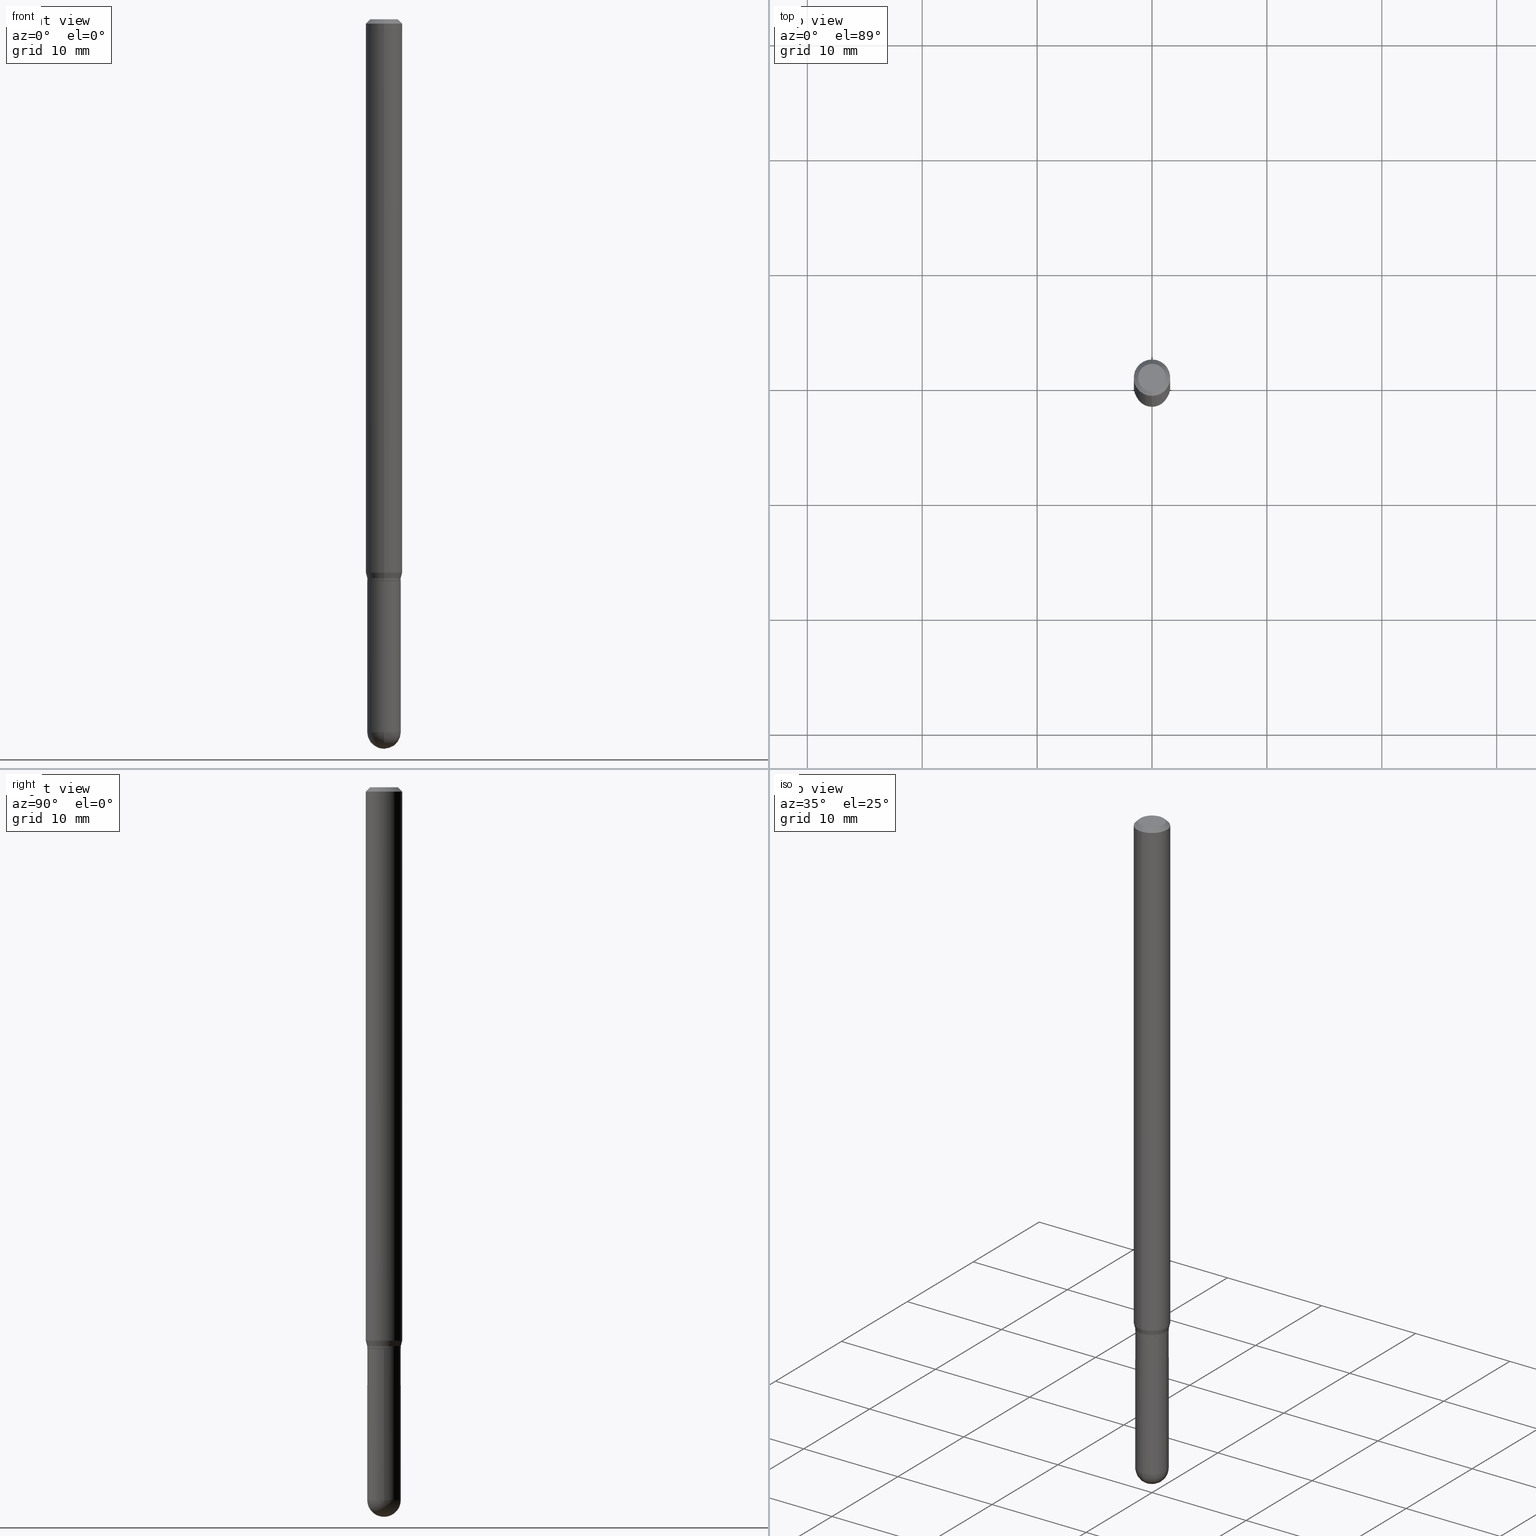
[diagram: canonical four-view strip — front | top / right | iso, engineering-drawing reading convention]
A machine part, canonical four-view strip (front | top / right | iso — engineering-drawing reading convention). The complete STEP part file that produces these views, byte-faithful:
ISO-10303-21;
HEADER;
FILE_DESCRIPTION (( 'STEP AP203' ),
    '1' );
FILE_NAME ('02745.STEP',
    '2024-03-07T21:10:19',
    ( '' ),
    ( '' ),
    'SwSTEP 2.0',
    'SolidWorks 2023',
    '' );
FILE_SCHEMA (( 'CONFIG_CONTROL_DESIGN' ));
ENDSEC;

DATA;
#1 = ORIENTED_EDGE ( 'NONE', *, *, #367, .F. ) ;
#2 = APPLICATION_PROTOCOL_DEFINITION ( 'international standard', 'config_control_design', 1994, #356 ) ;
#3 = FACE_OUTER_BOUND ( 'NONE', #479, .T. ) ;
#4 = ADVANCED_FACE ( 'NONE', ( #81 ), #64, .T. ) ;
#5 = VERTEX_POINT ( 'NONE', #118 ) ;
#6 = DIRECTION ( 'NONE',  ( 0.000000000000000000, 0.000000000000000000, 1.000000000000000000 ) ) ;
#7 = CARTESIAN_POINT ( 'NONE',  ( 5.973057559107196227E-29, -8.527943170124383355E-15, -2.442499999999999893 ) ) ;
#8 = ORIENTED_EDGE ( 'NONE', *, *, #360, .F. ) ;
#9 = DIRECTION ( 'NONE',  ( -6.982962677686266711E-15, -1.000000000000000000, 3.491345452654137754E-15 ) ) ;
#10 = AXIS2_PLACEMENT_3D ( 'NONE', #182, #257, #293 ) ;
#11 = DIRECTION ( 'NONE',  ( -6.982962677686265922E-15, -1.000000000000000000, 3.491345452654138149E-15 ) ) ;
#12 = EDGE_LOOP ( 'NONE', ( #253, #455, #442, #174 ) ) ;
#13 = EDGE_CURVE ( 'NONE', #428, #29, #503, .T. ) ;
#14 = LINE ( 'NONE', #97, #210 ) ;
#15 = EDGE_LOOP ( 'NONE', ( #136, #383 ) ) ;
#16 = APPLICATION_CONTEXT ( 'configuration controlled 3d designs of mechanical parts and assemblies' ) ;
#17 = FACE_OUTER_BOUND ( 'NONE', #150, .T. ) ;
#18 = DIRECTION ( 'NONE',  ( -6.982962677686265922E-15, -1.000000000000000000, 4.751039988981356524E-15 ) ) ;
#19 = AXIS2_PLACEMENT_3D ( 'NONE', #149, #141, #224 ) ;
#20 = VERTEX_POINT ( 'NONE', #456 ) ;
#21 = EDGE_CURVE ( 'NONE', #20, #91, #169, .T. ) ;
#22 = AXIS2_PLACEMENT_3D ( 'NONE', #175, #366, #11 ) ;
#23 =( GEOMETRIC_REPRESENTATION_CONTEXT ( 3 ) GLOBAL_UNCERTAINTY_ASSIGNED_CONTEXT ( ( #327 ) ) GLOBAL_UNIT_ASSIGNED_CONTEXT ( ( #203, #241, #206 ) ) REPRESENTATION_CONTEXT ( 'NONE', 'WORKASPACE' ) );
#24 = CC_DESIGN_APPROVAL ( #153, ( #333 ) ) ;
#25 = PERSON_AND_ORGANIZATION ( #47, #201 ) ;
#26 = DIRECTION ( 'NONE',  ( -2.445563695003762350E-29, 3.491345452654137360E-15, 1.000000000000000000 ) ) ;
#27 = ORIENTED_EDGE ( 'NONE', *, *, #159, .F. ) ;
#28 = CARTESIAN_POINT ( 'NONE',  ( 4.440892098501090604E-16, 0.06249999999999340111, -1.896339745962153822 ) ) ;
#29 = VERTEX_POINT ( 'NONE', #270 ) ;
#30 = DIRECTION ( 'NONE',  ( 6.982962677686265922E-15, 1.000000000000000000, -3.483106191921935554E-15 ) ) ;
#31 = ORIENTED_EDGE ( 'NONE', *, *, #142, .T. ) ;
#32 = CARTESIAN_POINT ( 'NONE',  ( 5.973057559107196227E-29, -8.527943170124383355E-15, -2.442499999999999893 ) ) ;
#33 = VECTOR ( 'NONE', #26, 39.37007874015748143 ) ;
#34 = CARTESIAN_POINT ( 'NONE',  ( 3.668345542505723731E-31, -5.237018178981320869E-17, -0.01500000000000032904 ) ) ;
#35 = EDGE_LOOP ( 'NONE', ( #273, #387 ) ) ;
#36 = DIRECTION ( 'NONE',  ( -2.445468806185136597E-29, 3.491481338843145583E-15, 1.000000000000000000 ) ) ;
#37 = APPROVAL_ROLE ( '' ) ;
#38 = VERTEX_POINT ( 'NONE', #347 ) ;
#39 = DIRECTION ( 'NONE',  ( -6.982962677686265922E-15, -1.000000000000000000, 4.792715778358356274E-15 ) ) ;
#40 = CC_DESIGN_PERSON_AND_ORGANIZATION_ASSIGNMENT ( #397, #208, ( #129 ) ) ;
#41 = DATE_AND_TIME ( #389, #78 ) ;
#42 = DIMENSIONAL_EXPONENTS ( 1.000000000000000000, 0.000000000000000000, 0.000000000000000000, 0.000000000000000000, 0.000000000000000000, 0.000000000000000000, 0.000000000000000000 ) ;
#43 = DIRECTION ( 'NONE',  ( -6.982962677686265922E-15, -1.000000000000000000, 3.483106191921935554E-15 ) ) ;
#44 = CARTESIAN_POINT ( 'NONE',  ( 4.707527451906388285E-29, -6.721101577273056164E-15, -1.925000000000000044 ) ) ;
#45 = AXIS2_PLACEMENT_3D ( 'NONE', #34, #417, #30 ) ;
#46 = DIRECTION ( 'NONE',  ( -1.000000000000000000, 7.105427357601001070E-15, -4.926315508542082329E-29 ) ) ;
#47 = PERSON ( 'UNSPECIFIED', 'UNSPECIFIED', 'UNSPECIFIED', ('UNSPECIFIED'), ('UNSPECIFIED'), ('UNSPECIFIED') ) ;
#48 = DIRECTION ( 'NONE',  ( -6.982962677686265922E-15, -1.000000000000000000, 4.792715778358356274E-15 ) ) ;
#49 = LINE ( 'NONE', #207, #55 ) ;
#50 = ORIENTED_EDGE ( 'NONE', *, *, #226, .F. ) ;
#51 = LINE ( 'NONE', #95, #54 ) ;
#52 = EDGE_CURVE ( 'NONE', #466, #282, #232, .T. ) ;
#53 = ORIENTED_EDGE ( 'NONE', *, *, #379, .T. ) ;
#54 = VECTOR ( 'NONE', #276, 39.37007874015748143 ) ;
#55 = VECTOR ( 'NONE', #359, 39.37007874015748143 ) ;
#56 = PLANE ( 'NONE',  #451 ) ;
#57 = ORIENTED_EDGE ( 'NONE', *, *, #21, .T. ) ;
#58 = CARTESIAN_POINT ( 'NONE',  ( 4.015203539670074013E-16, 0.05749999999999328565, -1.925000000000000266 ) ) ;
#59 = EDGE_CURVE ( 'NONE', #200, #91, #146, .T. ) ;
#60 = DIRECTION ( 'NONE',  ( -2.445468806185136597E-29, 3.491481338843145583E-15, 1.000000000000000000 ) ) ;
#61 = CIRCLE ( 'NONE', #342, 0.05700000000000000205 ) ;
#62 = ADVANCED_FACE ( 'NONE', ( #391 ), #277, .T. ) ;
#63 = DIRECTION ( 'NONE',  ( -6.982962677686265922E-15, -1.000000000000000000, 4.751039988981356524E-15 ) ) ;
#64 = CONICAL_SURFACE ( 'NONE', #392, 0.06250000000000000000, 0.7853981633974483900 ) ;
#65 = CIRCLE ( 'NONE', #251, 0.05749999999999964861 ) ;
#66 = CARTESIAN_POINT ( 'NONE',  ( 5.973057559107196227E-29, -8.527943170124383355E-15, -2.442499999999999893 ) ) ;
#67 = VERTEX_POINT ( 'NONE', #343 ) ;
#68 = DIRECTION ( 'NONE',  ( -2.445563695003762069E-29, 3.491345452654137754E-15, 1.000000000000000000 ) ) ;
#69 = EDGE_LOOP ( 'NONE', ( #240, #74, #475, #57 ) ) ;
#70 = ADVANCED_FACE ( 'NONE', ( #463 ), #339, .T. ) ;
#71 = ORIENTED_EDGE ( 'NONE', *, *, #13, .F. ) ;
#72 = DIRECTION ( 'NONE',  ( 1.000000000000000000, -6.982962677686273810E-15, 0.000000000000000000 ) ) ;
#73 = EDGE_LOOP ( 'NONE', ( #511, #199, #430, #83 ) ) ;
#74 = ORIENTED_EDGE ( 'NONE', *, *, #480, .F. ) ;
#75 = DIRECTION ( 'NONE',  ( -2.445468806185136597E-29, 3.491481338843145583E-15, 1.000000000000000000 ) ) ;
#76 = VECTOR ( 'NONE', #296, 39.37007874015748143 ) ;
#77 = CIRCLE ( 'NONE', #19, 0.05749999999999979433 ) ;
#78 = LOCAL_TIME ( 16, 10, 19.00000000000000000, #157 ) ;
#79 = APPLICATION_PROTOCOL_DEFINITION ( 'international standard', 'config_control_design', 1994, #16 ) ;
#80 = EDGE_LOOP ( 'NONE', ( #196, #183, #355, #349, #440 ) ) ;
#81 = FACE_OUTER_BOUND ( 'NONE', #69, .T. ) ;
#82 = APPROVAL_STATUS ( 'not_yet_approved' ) ;
#83 = ORIENTED_EDGE ( 'NONE', *, *, #297, .F. ) ;
#84 = DIRECTION ( 'NONE',  ( -2.445563695003762350E-29, 3.491345452654137360E-15, 1.000000000000000000 ) ) ;
#85 = CYLINDRICAL_SURFACE ( 'NONE', #217, 0.06250000000000000000 ) ;
#86 = VERTEX_POINT ( 'NONE', #393 ) ;
#87 = AXIS2_PLACEMENT_3D ( 'NONE', #32, #160, #505 ) ;
#88 = CALENDAR_DATE ( 2024, 7, 3 ) ;
#89 = PRODUCT_DEFINITION_SHAPE ( 'NONE', 'NONE',  #129 ) ;
#90 = FACE_OUTER_BOUND ( 'NONE', #423, .T. ) ;
#91 = VERTEX_POINT ( 'NONE', #467 ) ;
#92 = DATE_AND_TIME ( #88, #490 ) ;
#93 = EDGE_CURVE ( 'NONE', #5, #328, #310, .T. ) ;
#94 = LINE ( 'NONE', #318, #508 ) ;
#95 = CARTESIAN_POINT ( 'NONE',  ( -0.05750000000000000250, 4.085620730620576246E-16, -2.828387676896570712E-30 ) ) ;
#96 = VECTOR ( 'NONE', #179, 39.37007874015748143 ) ;
#97 = CARTESIAN_POINT ( 'NONE',  ( 4.364351673553919652E-16, 0.06249999999999995143, -0.01500000000000054588 ) ) ;
#98 = ORIENTED_EDGE ( 'NONE', *, *, #297, .T. ) ;
#99 = PLANE ( 'NONE',  #406 ) ;
#100 = EDGE_LOOP ( 'NONE', ( #1, #221, #497, #375 ) ) ;
#101 = ADVANCED_FACE ( 'NONE', ( #263 ), #85, .T. ) ;
#102 = APPROVAL_PERSON_ORGANIZATION ( #386, #204, #37 ) ;
#103 = ADVANCED_FACE ( 'NONE', ( #385 ), #242, .T. ) ;
#104 = CARTESIAN_POINT ( 'NONE',  ( 0.05750000000000000250, -8.026042727665680963E-15, -2.442499999999999893 ) ) ;
#105 = CARTESIAN_POINT ( 'NONE',  ( 0.000000000000000000, 0.000000000000000000, 0.000000000000000000 ) ) ;
#106 = AXIS2_PLACEMENT_3D ( 'NONE', #192, #68, #345 ) ;
#107 = FACE_OUTER_BOUND ( 'NONE', #284, .T. ) ;
#108 = CARTESIAN_POINT ( 'NONE',  ( 4.683254475932201842E-29, -6.685926541832670601E-15, -1.914999999999999147 ) ) ;
#109 = COORDINATED_UNIVERSAL_TIME_OFFSET ( 5, 0, .BEHIND. ) ;
#110 = DIRECTION ( 'NONE',  ( -2.445563695003762069E-29, 3.491345452654137754E-15, 1.000000000000000000 ) ) ;
#111 = VERTEX_POINT ( 'NONE', #187 ) ;
#112 = DIRECTION ( 'NONE',  ( -2.445563695003762069E-29, 3.491345452654137754E-15, 1.000000000000000000 ) ) ;
#113 = ORIENTED_EDGE ( 'NONE', *, *, #325, .T. ) ;
#114 = DIRECTION ( 'NONE',  ( -6.982962677686265922E-15, -1.000000000000000000, 3.491345452654138149E-15 ) ) ;
#115 = CONICAL_SURFACE ( 'NONE', #412, 0.05700000000000000205, 0.7853981633974739252 ) ;
#116 = DIRECTION ( 'NONE',  ( 6.982962677686265922E-15, 1.000000000000000000, -3.483106191921935554E-15 ) ) ;
#117 = DIRECTION ( 'NONE',  ( -4.851104656540964275E-15, -0.7071067811865500152, -0.7071067811865450192 ) ) ;
#118 = CARTESIAN_POINT ( 'NONE',  ( 4.263256414561055046E-16, 0.05749999999999296646, -1.914999999999999369 ) ) ;
#119 = ORIENTED_EDGE ( 'NONE', *, *, #142, .F. ) ;
#120 = PERSON_AND_ORGANIZATION ( #47, #201 ) ;
#121 = DIRECTION ( 'NONE',  ( -2.445563695003762069E-29, 3.491345452654137754E-15, 1.000000000000000000 ) ) ;
#122 = ORIENTED_EDGE ( 'NONE', *, *, #433, .F. ) ;
#123 = AXIS2_PLACEMENT_3D ( 'NONE', #364, #481, #358 ) ;
#124 = CONICAL_SURFACE ( 'NONE', #510, 0.05749999999999964861, 0.2617993877991510732 ) ;
#125 = DIRECTION ( 'NONE',  ( 1.000000000000000000, -6.982962677686265922E-15, 4.876176775795935232E-29 ) ) ;
#126 = ORIENTED_EDGE ( 'NONE', *, *, #228, .T. ) ;
#127 = EDGE_CURVE ( 'NONE', #245, #200, #229, .T. ) ;
#128 = CARTESIAN_POINT ( 'NONE',  ( 4.637619636117699599E-29, -6.620777148752266590E-15, -1.896339745962153600 ) ) ;
#129 = PRODUCT_DEFINITION ( 'UNKNOWN', '', #255, #134 ) ;
#130 = DIRECTION ( 'NONE',  ( -6.982962677686265922E-15, -1.000000000000000000, 4.370956789862821150E-15 ) ) ;
#131 = AXIS2_PLACEMENT_3D ( 'NONE', #403, #483, #285 ) ;
#132 = CIRCLE ( 'NONE', #181, 0.05750000000000000250 ) ;
#133 = DIRECTION ( 'NONE',  ( -2.445563695003762069E-29, 3.491345452654137360E-15, 1.000000000000000000 ) ) ;
#134 = DESIGN_CONTEXT ( 'detailed design', #16, 'design' ) ;
#135 = EDGE_CURVE ( 'NONE', #86, #164, #341, .T. ) ;
#136 = ORIENTED_EDGE ( 'NONE', *, *, #488, .F. ) ;
#137 = PLANE ( 'NONE',  #161 ) ;
#138 = ORIENTED_EDGE ( 'NONE', *, *, #127, .T. ) ;
#139 = EDGE_CURVE ( 'NONE', #282, #459, #482, .T. ) ;
#140 = AXIS2_PLACEMENT_3D ( 'NONE', #306, #317, #9 ) ;
#141 = DIRECTION ( 'NONE',  ( 1.000000000000000000, -6.982962677686265922E-15, 4.883557194083112340E-29 ) ) ;
#142 = EDGE_CURVE ( 'NONE', #328, #20, #94, .T. ) ;
#143 = DATE_AND_TIME ( #376, #437 ) ;
#144 = CYLINDRICAL_SURFACE ( 'NONE', #363, 0.05749999999999964861 ) ;
#145 = ORIENTED_EDGE ( 'NONE', *, *, #325, .F. ) ;
#146 = LINE ( 'NONE', #312, #489 ) ;
#147 = AXIS2_PLACEMENT_3D ( 'NONE', #377, #110, #454 ) ;
#148 = DATE_TIME_ROLE ( 'classification_date' ) ;
#149 = CARTESIAN_POINT ( 'NONE',  ( 5.968140352944414042E-29, -8.534984889219480121E-15, -2.442499999999999893 ) ) ;
#150 = EDGE_LOOP ( 'NONE', ( #186, #176, #233, #71, #346 ) ) ;
#151 = CARTESIAN_POINT ( 'NONE',  ( 5.968140352944414042E-29, -8.534984889219480121E-15, -2.442499999999999893 ) ) ;
#152 = DIRECTION ( 'NONE',  ( -6.982962677686265922E-15, -1.000000000000000000, 4.751039988981356524E-15 ) ) ;
#153 = APPROVAL ( #264, 'UNSPECIFIED' ) ;
#154 = DIRECTION ( 'NONE',  ( 6.982962677686265922E-15, 1.000000000000000000, -4.751039988981343903E-15 ) ) ;
#155 = APPROVAL_DATE_TIME ( #344, #153 ) ;
#156 = PERSON_AND_ORGANIZATION_ROLE ( 'design_supplier' ) ;
#157 = COORDINATED_UNIVERSAL_TIME_OFFSET ( 5, 0, .BEHIND. ) ;
#158 = ORIENTED_EDGE ( 'NONE', *, *, #450, .T. ) ;
#159 = EDGE_CURVE ( 'NONE', #67, #20, #14, .T. ) ;
#160 = DIRECTION ( 'NONE',  ( -2.445468806185136597E-29, 3.491481338843145583E-15, 1.000000000000000000 ) ) ;
#161 = AXIS2_PLACEMENT_3D ( 'NONE', #259, #340, #265 ) ;
#162 = PERSON_AND_ORGANIZATION_ROLE ( 'creator' ) ;
#163 = DIRECTION ( 'NONE',  ( -2.445468806185136877E-29, 3.491481338843145188E-15, 1.000000000000000000 ) ) ;
#164 = VERTEX_POINT ( 'NONE', #209 ) ;
#165 = PERSON_AND_ORGANIZATION_ROLE ( 'design_owner' ) ;
#166 = DIRECTION ( 'NONE',  ( -2.445563695003762350E-29, 3.491345452654137360E-15, 1.000000000000000000 ) ) ;
#167 = VERTEX_POINT ( 'NONE', #246 ) ;
#168 = DIRECTION ( 'NONE',  ( -2.445468806185136597E-29, 3.491481338843145583E-15, 1.000000000000000000 ) ) ;
#169 = CIRCLE ( 'NONE', #250, 0.06250000000000000000 ) ;
#170 = DIRECTION ( 'NONE',  ( 1.000000000000000000, -6.982962677686273810E-15, 0.000000000000000000 ) ) ;
#171 = CONICAL_SURFACE ( 'NONE', #319, 0.05700000000000000205, 0.7853981633974739252 ) ;
#172 = CC_DESIGN_APPROVAL ( #204, ( #255 ) ) ;
#173 = DIRECTION ( 'NONE',  ( 4.937700262164548042E-15, 0.7071067811865451302, -0.7071067811865499042 ) ) ;
#174 = ORIENTED_EDGE ( 'NONE', *, *, #450, .F. ) ;
#175 = CARTESIAN_POINT ( 'NONE',  ( 0.000000000000000000, 0.000000000000000000, 0.000000000000000000 ) ) ;
#176 = ORIENTED_EDGE ( 'NONE', *, *, #214, .T. ) ;
#177 = PRODUCT ( '02745', '02745', '', ( #280 ) ) ;
#178 = EDGE_CURVE ( 'NONE', #111, #390, #308, .T. ) ;
#179 = DIRECTION ( 'NONE',  ( 5.024295867788190974E-15, 0.7071067811865681119, 0.7071067811865270336 ) ) ;
#180 = AXIS2_PLACEMENT_3D ( 'NONE', #460, #36, #416 ) ;
#181 = AXIS2_PLACEMENT_3D ( 'NONE', #7, #168, #281 ) ;
#182 = CARTESIAN_POINT ( 'NONE',  ( 3.668345542505723731E-31, -5.237018178981320869E-17, -0.01500000000000032904 ) ) ;
#183 = ORIENTED_EDGE ( 'NONE', *, *, #139, .T. ) ;
#184 = CARTESIAN_POINT ( 'NONE',  ( 4.637619636117699599E-29, -6.620777148752266590E-15, -1.896339745962153600 ) ) ;
#185 = SPHERICAL_SURFACE ( 'NONE', #243, 0.05749999999999979433 ) ;
#186 = ORIENTED_EDGE ( 'NONE', *, *, #52, .T. ) ;
#187 = CARTESIAN_POINT ( 'NONE',  ( -4.015203539669102728E-16, -0.05750000000000629607, -1.924499999999999877 ) ) ;
#188 = CARTESIAN_POINT ( 'NONE',  ( 4.706487331034740649E-29, -6.719094323632889160E-15, -1.924500000000000099 ) ) ;
#189 = ORIENTED_EDGE ( 'NONE', *, *, #408, .T. ) ;
#190 = CARTESIAN_POINT ( 'NONE',  ( -4.015203539669110123E-16, -0.05750000000000633771, -1.914999999999998925 ) ) ;
#191 = ADVANCED_FACE ( 'NONE', ( #252 ), #99, .F. ) ;
#192 = CARTESIAN_POINT ( 'NONE',  ( 8.025200470718538243E-45, -1.145696888914516956E-30, -3.281534023061375275E-16 ) ) ;
#193 = CARTESIAN_POINT ( 'NONE',  ( 4.707710112882242397E-29, -6.720839996359215000E-15, -1.924999999999999822 ) ) ;
#194 = ADVANCED_FACE ( 'NONE', ( #90 ), #362, .T. ) ;
#195 = LENGTH_MEASURE_WITH_UNIT ( LENGTH_MEASURE( 0.02539999999999999897 ), #434 );
#196 = ORIENTED_EDGE ( 'NONE', *, *, #214, .F. ) ;
#197 = CARTESIAN_POINT ( 'NONE',  ( 5.973057559107196227E-29, -8.527943170124383355E-15, -2.442499999999999893 ) ) ;
#198 = APPROVAL_DATE_TIME ( #41, #204 ) ;
#199 = ORIENTED_EDGE ( 'NONE', *, *, #453, .T. ) ;
#200 = VERTEX_POINT ( 'NONE', #244 ) ;
#201 = ORGANIZATION ( 'UNSPECIFIED', 'UNSPECIFIED', '' ) ;
#202 = ORIENTED_EDGE ( 'NONE', *, *, #59, .T. ) ;
#203 =( CONVERSION_BASED_UNIT ( 'INCH', #195 ) LENGTH_UNIT ( ) NAMED_UNIT ( #42 ) );
#204 = APPROVAL ( #82, 'UNSPECIFIED' ) ;
#205 = FACE_OUTER_BOUND ( 'NONE', #15, .T. ) ;
#206 =( NAMED_UNIT ( * ) SI_UNIT ( $, .STERADIAN. ) SOLID_ANGLE_UNIT ( ) );
#207 = CARTESIAN_POINT ( 'NONE',  ( -4.015203539669578509E-16, -0.05749999999999964861, 2.007523635276117060E-16 ) ) ;
#208 = PERSON_AND_ORGANIZATION_ROLE ( 'creator' ) ;
#209 = CARTESIAN_POINT ( 'NONE',  ( -3.980288726280700760E-16, -0.05700000000000671890, -1.924999999999999600 ) ) ;
#210 = VECTOR ( 'NONE', #173, 39.37007874015748143 ) ;
#211 = EDGE_LOOP ( 'NONE', ( #498, #113, #138, #247 ) ) ;
#212 = CLOSED_SHELL ( 'NONE', ( #258, #354, #191, #70, #103 ) ) ;
#213 = CARTESIAN_POINT ( 'NONE',  ( 4.707710112882242397E-29, -6.720839996359215000E-15, -1.924999999999999822 ) ) ;
#214 = EDGE_CURVE ( 'NONE', #282, #468, #51, .T. ) ;
#215 = CARTESIAN_POINT ( 'NONE',  ( 4.707710112882242397E-29, -6.720839996359215000E-15, -1.924999999999999822 ) ) ;
#216 = DIRECTION ( 'NONE',  ( 1.000000000000000000, -6.982962677686273810E-15, 0.000000000000000000 ) ) ;
#217 = AXIS2_PLACEMENT_3D ( 'NONE', #266, #301, #114 ) ;
#218 = AXIS2_PLACEMENT_3D ( 'NONE', #66, #60, #72 ) ;
#219 = LOCAL_TIME ( 16, 10, 19.00000000000000000, #506 ) ;
#220 = EDGE_CURVE ( 'NONE', #86, #390, #395, .T. ) ;
#221 = ORIENTED_EDGE ( 'NONE', *, *, #234, .T. ) ;
#222 = DIRECTION ( 'NONE',  ( -6.982962677686265922E-15, -1.000000000000000000, 3.491345452654138149E-15 ) ) ;
#223 = CC_DESIGN_PERSON_AND_ORGANIZATION_ASSIGNMENT ( #238, #495, ( #333 ) ) ;
#224 = DIRECTION ( 'NONE',  ( 6.982962677686265922E-15, 1.000000000000000000, 0.000000000000000000 ) ) ;
#225 = ORIENTED_EDGE ( 'NONE', *, *, #453, .F. ) ;
#226 = EDGE_CURVE ( 'NONE', #200, #328, #372, .T. ) ;
#227 = FACE_OUTER_BOUND ( 'NONE', #396, .T. ) ;
#228 = EDGE_CURVE ( 'NONE', #245, #5, #353, .T. ) ;
#229 = LINE ( 'NONE', #190, #499 ) ;
#230 = CALENDAR_DATE ( 2024, 7, 3 ) ;
#231 = FACE_OUTER_BOUND ( 'NONE', #73, .T. ) ;
#232 = CIRCLE ( 'NONE', #87, 0.05750000000000000250 ) ;
#233 = ORIENTED_EDGE ( 'NONE', *, *, #446, .F. ) ;
#234 = EDGE_CURVE ( 'NONE', #38, #459, #260, .T. ) ;
#235 = COORDINATED_UNIVERSAL_TIME_OFFSET ( 5, 0, .BEHIND. ) ;
#236 = ORIENTED_EDGE ( 'NONE', *, *, #234, .F. ) ;
#237 = CARTESIAN_POINT ( 'NONE',  ( 0.05750000000000000250, -4.015203539669603161E-16, 2.803801646082662941E-30 ) ) ;
#238 = PERSON_AND_ORGANIZATION ( #47, #201 ) ;
#239 = PERSON_AND_ORGANIZATION ( #47, #201 ) ;
#240 = ORIENTED_EDGE ( 'NONE', *, *, #477, .F. ) ;
#241 =( NAMED_UNIT ( * ) PLANE_ANGLE_UNIT ( ) SI_UNIT ( $, .RADIAN. ) );
#242 = CYLINDRICAL_SURFACE ( 'NONE', #180, 0.05750000000000000250 ) ;
#243 = AXIS2_PLACEMENT_3D ( 'NONE', #294, #449, #380 ) ;
#244 = CARTESIAN_POINT ( 'NONE',  ( -4.364351673553450773E-16, -0.06250000000000659195, -1.896339745962153378 ) ) ;
#245 = VERTEX_POINT ( 'NONE', #283 ) ;
#246 = CARTESIAN_POINT ( 'NONE',  ( -3.773273898774340269E-16, -0.04749999999999999362, -1.623144933050660295E-16 ) ) ;
#247 = ORIENTED_EDGE ( 'NONE', *, *, #379, .F. ) ;
#248 = CC_DESIGN_DATE_AND_TIME_ASSIGNMENT ( #143, #148, ( #333 ) ) ;
#249 = DIRECTION ( 'NONE',  ( 2.438088387897960049E-29, -3.491481338843145188E-15, -1.000000000000000000 ) ) ;
#250 = AXIS2_PLACEMENT_3D ( 'NONE', #512, #112, #43 ) ;
#251 = AXIS2_PLACEMENT_3D ( 'NONE', #188, #504, #152 ) ;
#252 = FACE_OUTER_BOUND ( 'NONE', #35, .T. ) ;
#253 = ORIENTED_EDGE ( 'NONE', *, *, #220, .F. ) ;
#254 = DIRECTION ( 'NONE',  ( -2.445563695003762069E-29, 3.491345452654137754E-15, 1.000000000000000000 ) ) ;
#255 = PRODUCT_DEFINITION_FORMATION_WITH_SPECIFIED_SOURCE ( 'ANY', '', #177, .NOT_KNOWN. ) ;
#256 = ADVANCED_FACE ( 'NONE', ( #441 ), #115, .T. ) ;
#257 = DIRECTION ( 'NONE',  ( -2.445563695003762069E-29, 3.491345452654137754E-15, 1.000000000000000000 ) ) ;
#258 = ADVANCED_FACE ( 'NONE', ( #17 ), #326, .T. ) ;
#259 = CARTESIAN_POINT ( 'NONE',  ( 3.316907271900976096E-16, 0.04749999999999999362, -3.299156101541403110E-16 ) ) ;
#260 = CIRCLE ( 'NONE', #295, 0.05749999999999979433 ) ;
#261 = AXIS2_PLACEMENT_3D ( 'NONE', #439, #337, #63 ) ;
#262 = DIRECTION ( 'NONE',  ( -2.445563695003762069E-29, 3.491345452654137754E-15, 1.000000000000000000 ) ) ;
#263 = FACE_OUTER_BOUND ( 'NONE', #448, .T. ) ;
#264 = APPROVAL_STATUS ( 'not_yet_approved' ) ;
#265 = DIRECTION ( 'NONE',  ( 6.982962677686265922E-15, 1.000000000000000000, -3.491345452654137360E-15 ) ) ;
#266 = CARTESIAN_POINT ( 'NONE',  ( 0.000000000000000000, 0.000000000000000000, 0.000000000000000000 ) ) ;
#267 = DATE_AND_TIME ( #361, #407 ) ;
#268 = APPROVAL_PERSON_ORGANIZATION ( #120, #469, #275 ) ;
#269 = SHAPE_DEFINITION_REPRESENTATION ( #89, #485 ) ;
#270 = CARTESIAN_POINT ( 'NONE',  ( 0.05750000000000000250, -7.122621931240016973E-15, -1.925000000000000044 ) ) ;
#271 = CARTESIAN_POINT ( 'NONE',  ( 4.707710112882242397E-29, -6.720839996359215000E-15, -1.924999999999999822 ) ) ;
#272 = DIRECTION ( 'NONE',  ( -1.000000000000000000, 6.982962677686265922E-15, -4.883557194083112901E-29 ) ) ;
#273 = ORIENTED_EDGE ( 'NONE', *, *, #446, .T. ) ;
#274 = ADVANCED_FACE ( 'NONE', ( #205 ), #56, .F. ) ;
#275 = APPROVAL_ROLE ( '' ) ;
#276 = DIRECTION ( 'NONE',  ( -2.445468806185136877E-29, 3.491481338843145188E-15, 1.000000000000000000 ) ) ;
#277 = CONICAL_SURFACE ( 'NONE', #290, 0.05749999999999964861, 0.2617993877991510732 ) ;
#278 = CIRCLE ( 'NONE', #140, 0.04749999999999999362 ) ;
#279 = ORIENTED_EDGE ( 'NONE', *, *, #21, .F. ) ;
#280 = MECHANICAL_CONTEXT ( 'NONE', #356, 'mechanical' ) ;
#281 = DIRECTION ( 'NONE',  ( 1.000000000000000000, -6.982962677686273810E-15, 0.000000000000000000 ) ) ;
#282 = VERTEX_POINT ( 'NONE', #447 ) ;
#283 = CARTESIAN_POINT ( 'NONE',  ( -4.015203539669110123E-16, -0.05750000000000633771, -1.914999999999998925 ) ) ;
#284 = EDGE_LOOP ( 'NONE', ( #324, #189 ) ) ;
#285 = DIRECTION ( 'NONE',  ( -6.982962677686265922E-15, -1.000000000000000000, 4.751039988981356524E-15 ) ) ;
#286 = CLOSED_SHELL ( 'NONE', ( #371, #292, #426, #194, #62, #419, #101, #4, #410, #274, #256, #334 ) ) ;
#287 = AXIS2_PLACEMENT_3D ( 'NONE', #44, #464, #170 ) ;
#288 = DIRECTION ( 'NONE',  ( -6.982962677686265922E-15, -1.000000000000000000, 3.491345452654137360E-15 ) ) ;
#289 = CARTESIAN_POINT ( 'NONE',  ( -4.085620730619970796E-16, -0.05750000000000843325, -2.442499999999999893 ) ) ;
#290 = AXIS2_PLACEMENT_3D ( 'NONE', #108, #305, #507 ) ;
#291 = CIRCLE ( 'NONE', #10, 0.06250000000000000000 ) ;
#292 = ADVANCED_FACE ( 'NONE', ( #3 ), #171, .T. ) ;
#293 = DIRECTION ( 'NONE',  ( -6.982962677686265922E-15, -1.000000000000000000, 3.483106191921935554E-15 ) ) ;
#294 = CARTESIAN_POINT ( 'NONE',  ( 5.968140352944414042E-29, -8.534984889219480121E-15, -2.442499999999999893 ) ) ;
#295 = AXIS2_PLACEMENT_3D ( 'NONE', #323, #46, #444 ) ;
#296 = DIRECTION ( 'NONE',  ( 1.839019923739605837E-15, 0.2588190451025257355, 0.9659258262890669799 ) ) ;
#297 = EDGE_CURVE ( 'NONE', #111, #245, #49, .T. ) ;
#298 = EDGE_CURVE ( 'NONE', #428, #466, #132, .T. ) ;
#299 = CARTESIAN_POINT ( 'NONE',  ( 4.085620730621026390E-16, 0.05749999999999300809, -1.924500000000000544 ) ) ;
#300 = CC_DESIGN_PERSON_AND_ORGANIZATION_ASSIGNMENT ( #365, #156, ( #255 ) ) ;
#301 = DIRECTION ( 'NONE',  ( -2.445563695003762069E-29, 3.491345452654137754E-15, 1.000000000000000000 ) ) ;
#302 = APPROVAL_ROLE ( '' ) ;
#303 = LINE ( 'NONE', #461, #33 ) ;
#304 = ORIENTED_EDGE ( 'NONE', *, *, #178, .F. ) ;
#305 = DIRECTION ( 'NONE',  ( -2.445563695003762069E-29, 3.491345452654137754E-15, 1.000000000000000000 ) ) ;
#306 = CARTESIAN_POINT ( 'NONE',  ( 8.025200470718538243E-45, -1.145696888914516956E-30, -3.281534023061375275E-16 ) ) ;
#307 = ORIENTED_EDGE ( 'NONE', *, *, #220, .T. ) ;
#308 = CIRCLE ( 'NONE', #123, 0.05749999999999964861 ) ;
#309 = CC_DESIGN_APPROVAL ( #469, ( #129 ) ) ;
#310 = LINE ( 'NONE', #425, #76 ) ;
#311 = COORDINATED_UNIVERSAL_TIME_OFFSET ( 5, 0, .BEHIND. ) ;
#312 = CARTESIAN_POINT ( 'NONE',  ( -4.364351673553916201E-16, -0.06250000000000000000, 2.182090907908836343E-16 ) ) ;
#313 = ORIENTED_EDGE ( 'NONE', *, *, #367, .T. ) ;
#314 = MANIFOLD_SOLID_BREP ( 'Body-Move/Copy2[1]', #212 ) ;
#315 = DIRECTION ( 'NONE',  ( -2.445563695003762069E-29, 3.491345452654137754E-15, 1.000000000000000000 ) ) ;
#316 = ORIENTED_EDGE ( 'NONE', *, *, #488, .T. ) ;
#317 = DIRECTION ( 'NONE',  ( -2.445563695003762069E-29, 3.491345452654137754E-15, 1.000000000000000000 ) ) ;
#318 = CARTESIAN_POINT ( 'NONE',  ( 4.440892098500625669E-16, 0.06250000000000000000, -2.182090907908836343E-16 ) ) ;
#319 = AXIS2_PLACEMENT_3D ( 'NONE', #474, #121, #436 ) ;
#320 = MANIFOLD_SOLID_BREP ( 'Body-Move/Copy2[2]', #286 ) ;
#321 = DIRECTION ( 'NONE',  ( -6.982962677686265922E-15, -1.000000000000000000, 4.792715778358356274E-15 ) ) ;
#322 = ORIENTED_EDGE ( 'NONE', *, *, #93, .T. ) ;
#323 = CARTESIAN_POINT ( 'NONE',  ( 5.968140352944414042E-29, -8.534984889219480121E-15, -2.442499999999999893 ) ) ;
#324 = ORIENTED_EDGE ( 'NONE', *, *, #480, .T. ) ;
#325 = EDGE_CURVE ( 'NONE', #5, #245, #384, .T. ) ;
#326 = CYLINDRICAL_SURFACE ( 'NONE', #373, 0.05750000000000000250 ) ;
#327 = UNCERTAINTY_MEASURE_WITH_UNIT (LENGTH_MEASURE( 1.000000000000000082E-05 ), #203, 'distance_accuracy_value', 'NONE');
#328 = VERTEX_POINT ( 'NONE', #28 ) ;
#329 = AXIS2_PLACEMENT_3D ( 'NONE', #409, #452, #216 ) ;
#330 = CARTESIAN_POINT ( 'NONE',  ( 4.015203539670193328E-16, 0.05749999999999136358, -2.442500000000000338 ) ) ;
#331 = CC_DESIGN_PERSON_AND_ORGANIZATION_ASSIGNMENT ( #509, #162, ( #255 ) ) ;
#332 = CIRCLE ( 'NONE', #484, 0.06250000000000000000 ) ;
#333 = SECURITY_CLASSIFICATION ( '', '', #457 ) ;
#334 = ADVANCED_FACE ( 'NONE', ( #227 ), #144, .T. ) ;
#335 = CC_DESIGN_SECURITY_CLASSIFICATION ( #333, ( #255 ) ) ;
#336 = DIRECTION ( 'NONE',  ( -2.445563695003762069E-29, 3.491345452654137754E-15, 1.000000000000000000 ) ) ;
#337 = DIRECTION ( 'NONE',  ( -2.445563695003762069E-29, 3.491345452654137754E-15, 1.000000000000000000 ) ) ;
#338 = EDGE_LOOP ( 'NONE', ( #405, #471, #418, #27 ) ) ;
#339 = SPHERICAL_SURFACE ( 'NONE', #421, 0.05749999999999979433 ) ;
#340 = DIRECTION ( 'NONE',  ( 2.445563695003762069E-29, -3.491345452654137360E-15, -1.000000000000000000 ) ) ;
#341 = CIRCLE ( 'NONE', #399, 0.05700000000000000205 ) ;
#342 = AXIS2_PLACEMENT_3D ( 'NONE', #271, #348, #48 ) ;
#343 = CARTESIAN_POINT ( 'NONE',  ( 3.840629472727447874E-16, 0.04749999999999999362, -4.939923113072090255E-16 ) ) ;
#344 = DATE_AND_TIME ( #230, #219 ) ;
#345 = DIRECTION ( 'NONE',  ( -6.982962677686266711E-15, -1.000000000000000000, 3.491345452654137754E-15 ) ) ;
#346 = ORIENTED_EDGE ( 'NONE', *, *, #298, .T. ) ;
#347 = CARTESIAN_POINT ( 'NONE',  ( 6.111213412381450399E-29, -8.732224206655410959E-15, -2.499999999999999556 ) ) ;
#348 = DIRECTION ( 'NONE',  ( -2.445563695003762069E-29, 3.491345452654137754E-15, 1.000000000000000000 ) ) ;
#349 = ORIENTED_EDGE ( 'NONE', *, *, #13, .T. ) ;
#350 = DIRECTION ( 'NONE',  ( 1.000000000000000000, -6.982962677686273810E-15, 0.000000000000000000 ) ) ;
#351 = CARTESIAN_POINT ( 'NONE',  ( 0.000000000000000000, 0.000000000000000000, 0.000000000000000000 ) ) ;
#352 = ORIENTED_EDGE ( 'NONE', *, *, #59, .F. ) ;
#353 = CIRCLE ( 'NONE', #131, 0.05749999999999964861 ) ;
#354 = ADVANCED_FACE ( 'NONE', ( #374 ), #185, .T. ) ;
#355 = ORIENTED_EDGE ( 'NONE', *, *, #433, .T. ) ;
#356 = APPLICATION_CONTEXT ( 'configuration controlled 3d designs of mechanical parts and assemblies' ) ;
#357 = ORIENTED_EDGE ( 'NONE', *, *, #470, .F. ) ;
#358 = DIRECTION ( 'NONE',  ( -6.982962677686265922E-15, -1.000000000000000000, 4.751039988981356524E-15 ) ) ;
#359 = DIRECTION ( 'NONE',  ( -2.445563695003762350E-29, 3.491345452654137360E-15, 1.000000000000000000 ) ) ;
#360 = EDGE_CURVE ( 'NONE', #164, #111, #501, .T. ) ;
#361 = CALENDAR_DATE ( 2024, 7, 3 ) ;
#362 = CYLINDRICAL_SURFACE ( 'NONE', #22, 0.06250000000000000000 ) ;
#363 = AXIS2_PLACEMENT_3D ( 'NONE', #105, #458, #222 ) ;
#364 = CARTESIAN_POINT ( 'NONE',  ( 4.706487331034740649E-29, -6.719094323632889160E-15, -1.924500000000000099 ) ) ;
#365 = PERSON_AND_ORGANIZATION ( #47, #201 ) ;
#366 = DIRECTION ( 'NONE',  ( -2.445563695003762069E-29, 3.491345452654137754E-15, 1.000000000000000000 ) ) ;
#367 = EDGE_CURVE ( 'NONE', #38, #466, #77, .T. ) ;
#368 = CARTESIAN_POINT ( 'NONE',  ( -0.05750000000000000250, -7.215960300636662578E-15, -1.925000000000000044 ) ) ;
#369 = AXIS2_PLACEMENT_3D ( 'NONE', #197, #75, #350 ) ;
#370 = CIRCLE ( 'NONE', #106, 0.04749999999999999362 ) ;
#371 = ADVANCED_FACE ( 'NONE', ( #231 ), #382, .T. ) ;
#372 = CIRCLE ( 'NONE', #443, 0.06250000000000000000 ) ;
#373 = AXIS2_PLACEMENT_3D ( 'NONE', #400, #472, #125 ) ;
#374 = FACE_OUTER_BOUND ( 'NONE', #100, .T. ) ;
#375 = ORIENTED_EDGE ( 'NONE', *, *, #52, .F. ) ;
#376 = CALENDAR_DATE ( 2024, 7, 3 ) ;
#377 = CARTESIAN_POINT ( 'NONE',  ( 0.000000000000000000, 0.000000000000000000, 0.000000000000000000 ) ) ;
#378 = CC_DESIGN_DATE_AND_TIME_ASSIGNMENT ( #267, #429, ( #129 ) ) ;
#379 = EDGE_CURVE ( 'NONE', #328, #200, #332, .T. ) ;
#380 = DIRECTION ( 'NONE',  ( 6.982962677686265922E-15, 1.000000000000000000, -4.751039988981343903E-15 ) ) ;
#381 = CARTESIAN_POINT ( 'NONE',  ( 3.668345542505723731E-31, -5.237018178981320869E-17, -0.01500000000000032904 ) ) ;
#382 = CYLINDRICAL_SURFACE ( 'NONE', #147, 0.05749999999999964861 ) ;
#383 = ORIENTED_EDGE ( 'NONE', *, *, #135, .F. ) ;
#384 = CIRCLE ( 'NONE', #261, 0.05749999999999964861 ) ;
#385 = FACE_OUTER_BOUND ( 'NONE', #80, .T. ) ;
#386 = PERSON_AND_ORGANIZATION ( #47, #201 ) ;
#387 = ORIENTED_EDGE ( 'NONE', *, *, #494, .T. ) ;
#388 = DIRECTION ( 'NONE',  ( -2.445563695003762069E-29, 3.491345452654137754E-15, 1.000000000000000000 ) ) ;
#389 = CALENDAR_DATE ( 2024, 7, 3 ) ;
#390 = VERTEX_POINT ( 'NONE', #299 ) ;
#391 = FACE_OUTER_BOUND ( 'NONE', #462, .T. ) ;
#392 = AXIS2_PLACEMENT_3D ( 'NONE', #381, #431, #116 ) ;
#393 = CARTESIAN_POINT ( 'NONE',  ( 4.067857162227030772E-16, 0.05699999999999327827, -1.925000000000000044 ) ) ;
#394 = CARTESIAN_POINT ( 'NONE',  ( -4.287811248607203282E-16, -0.06250000000000005551, -0.01500000000000011047 ) ) ;
#395 = LINE ( 'NONE', #478, #96 ) ;
#396 = EDGE_LOOP ( 'NONE', ( #225, #158, #98, #145 ) ) ;
#397 = PERSON_AND_ORGANIZATION ( #47, #201 ) ;
#398 = DIRECTION ( 'NONE',  ( -1.000000000000000000, 6.982962677686265922E-15, -4.876176775795935793E-29 ) ) ;
#399 = AXIS2_PLACEMENT_3D ( 'NONE', #193, #388, #39 ) ;
#400 = CARTESIAN_POINT ( 'NONE',  ( 0.000000000000000000, 0.000000000000000000, 0.000000000000000000 ) ) ;
#401 = CIRCLE ( 'NONE', #218, 0.05750000000000000250 ) ;
#402 = CC_DESIGN_PERSON_AND_ORGANIZATION_ASSIGNMENT ( #239, #165, ( #177 ) ) ;
#403 = CARTESIAN_POINT ( 'NONE',  ( 4.683254475932201842E-29, -6.685926541832670601E-15, -1.914999999999999147 ) ) ;
#404 = CARTESIAN_POINT ( 'NONE',  ( 4.683254475932201842E-29, -6.685926541832670601E-15, -1.914999999999999147 ) ) ;
#405 = ORIENTED_EDGE ( 'NONE', *, *, #408, .F. ) ;
#406 = AXIS2_PLACEMENT_3D ( 'NONE', #58, #249, #398 ) ;
#407 = LOCAL_TIME ( 16, 10, 19.00000000000000000, #235 ) ;
#408 = EDGE_CURVE ( 'NONE', #167, #67, #370, .T. ) ;
#409 = CARTESIAN_POINT ( 'NONE',  ( 4.707527451906388285E-29, -6.721101577273056164E-15, -1.925000000000000044 ) ) ;
#410 = ADVANCED_FACE ( 'NONE', ( #107 ), #137, .F. ) ;
#411 = VECTOR ( 'NONE', #163, 39.37007874015748143 ) ;
#412 = AXIS2_PLACEMENT_3D ( 'NONE', #215, #315, #321 ) ;
#413 = DIRECTION ( 'NONE',  ( -6.982962677686265922E-15, -1.000000000000000000, 4.370956789862821150E-15 ) ) ;
#414 = FACE_OUTER_BOUND ( 'NONE', #338, .T. ) ;
#415 = ORIENTED_EDGE ( 'NONE', *, *, #226, .T. ) ;
#416 = DIRECTION ( 'NONE',  ( 1.000000000000000000, -6.982962677686265922E-15, 4.876176775795935232E-29 ) ) ;
#417 = DIRECTION ( 'NONE',  ( 2.445563695003762069E-29, -3.491345452654137754E-15, -1.000000000000000000 ) ) ;
#418 = ORIENTED_EDGE ( 'NONE', *, *, #470, .T. ) ;
#419 = ADVANCED_FACE ( 'NONE', ( #487 ), #124, .T. ) ;
#420 = DIRECTION ( 'NONE',  ( -1.807323732225335661E-15, -0.2588190451025189631, 0.9659258262890687563 ) ) ;
#421 = AXIS2_PLACEMENT_3D ( 'NONE', #151, #272, #154 ) ;
#422 = DIRECTION ( 'NONE',  ( 1.000000000000000000, 0.000000000000000000, 0.000000000000000000 ) ) ;
#423 = EDGE_LOOP ( 'NONE', ( #415, #31, #357, #352 ) ) ;
#424 = CIRCLE ( 'NONE', #287, 0.05750000000000000250 ) ;
#425 = CARTESIAN_POINT ( 'NONE',  ( 4.085620730621018994E-16, 0.05749999999999296646, -1.914999999999999369 ) ) ;
#426 = ADVANCED_FACE ( 'NONE', ( #414 ), #435, .T. ) ;
#427 = APPROVAL_DATE_TIME ( #92, #469 ) ;
#428 = VERTEX_POINT ( 'NONE', #104 ) ;
#429 = DATE_TIME_ROLE ( 'creation_date' ) ;
#430 = ORIENTED_EDGE ( 'NONE', *, *, #228, .F. ) ;
#431 = DIRECTION ( 'NONE',  ( 2.445563695003762069E-29, -3.491345452654137754E-15, -1.000000000000000000 ) ) ;
#432 = EDGE_LOOP ( 'NONE', ( #236, #313, #486, #122 ) ) ;
#433 = EDGE_CURVE ( 'NONE', #459, #428, #401, .T. ) ;
#434 =( LENGTH_UNIT ( ) NAMED_UNIT ( * ) SI_UNIT ( $, .METRE. ) );
#435 = CONICAL_SURFACE ( 'NONE', #45, 0.06250000000000000000, 0.7853981633974483900 ) ;
#436 = DIRECTION ( 'NONE',  ( -6.982962677686265922E-15, -1.000000000000000000, 4.792715778358356274E-15 ) ) ;
#437 = LOCAL_TIME ( 16, 10, 19.00000000000000000, #109 ) ;
#438 = APPROVAL_STATUS ( 'not_yet_approved' ) ;
#439 = CARTESIAN_POINT ( 'NONE',  ( 4.683254475932201842E-29, -6.685926541832670601E-15, -1.914999999999999147 ) ) ;
#440 = ORIENTED_EDGE ( 'NONE', *, *, #494, .F. ) ;
#441 = FACE_OUTER_BOUND ( 'NONE', #12, .T. ) ;
#442 = ORIENTED_EDGE ( 'NONE', *, *, #360, .T. ) ;
#443 = AXIS2_PLACEMENT_3D ( 'NONE', #128, #254, #130 ) ;
#444 = DIRECTION ( 'NONE',  ( -7.105427357601001070E-15, -1.000000000000000000, 0.000000000000000000 ) ) ;
#445 = APPROVAL_PERSON_ORGANIZATION ( #25, #153, #302 ) ;
#446 = EDGE_CURVE ( 'NONE', #29, #468, #465, .T. ) ;
#447 = CARTESIAN_POINT ( 'NONE',  ( -0.05750000000000000250, -7.215960300636662578E-15, -2.442499999999999893 ) ) ;
#448 = EDGE_LOOP ( 'NONE', ( #119, #53, #202, #279 ) ) ;
#449 = DIRECTION ( 'NONE',  ( -1.000000000000000000, 6.982962677686265922E-15, -4.883557194083112901E-29 ) ) ;
#450 = EDGE_CURVE ( 'NONE', #390, #111, #65, .T. ) ;
#451 = AXIS2_PLACEMENT_3D ( 'NONE', #213, #133, #288 ) ;
#452 = DIRECTION ( 'NONE',  ( -2.445468806185136597E-29, 3.491481338843145583E-15, 1.000000000000000000 ) ) ;
#453 = EDGE_CURVE ( 'NONE', #390, #5, #303, .T. ) ;
#454 = DIRECTION ( 'NONE',  ( -6.982962677686265922E-15, -1.000000000000000000, 3.491345452654138149E-15 ) ) ;
#455 = ORIENTED_EDGE ( 'NONE', *, *, #135, .T. ) ;
#456 = CARTESIAN_POINT ( 'NONE',  ( 4.440892098501092576E-16, 0.06249999999999995143, -0.01500000000000054588 ) ) ;
#457 = SECURITY_CLASSIFICATION_LEVEL ( 'unclassified' ) ;
#458 = DIRECTION ( 'NONE',  ( -2.445563695003762069E-29, 3.491345452654137754E-15, 1.000000000000000000 ) ) ;
#459 = VERTEX_POINT ( 'NONE', #289 ) ;
#460 = CARTESIAN_POINT ( 'NONE',  ( 0.000000000000000000, 0.000000000000000000, 0.000000000000000000 ) ) ;
#461 = CARTESIAN_POINT ( 'NONE',  ( 4.085620730620550608E-16, 0.05749999999999964861, -2.007523635276117060E-16 ) ) ;
#462 = EDGE_LOOP ( 'NONE', ( #126, #322, #50, #502 ) ) ;
#463 = FACE_OUTER_BOUND ( 'NONE', #432, .T. ) ;
#464 = DIRECTION ( 'NONE',  ( -2.445468806185136597E-29, 3.491481338843145583E-15, 1.000000000000000000 ) ) ;
#465 = CIRCLE ( 'NONE', #329, 0.05750000000000000250 ) ;
#466 = VERTEX_POINT ( 'NONE', #330 ) ;
#467 = CARTESIAN_POINT ( 'NONE',  ( -4.364351673553912750E-16, -0.06250000000000005551, -0.01500000000000011047 ) ) ;
#468 = VERTEX_POINT ( 'NONE', #368 ) ;
#469 = APPROVAL ( #438, 'UNSPECIFIED' ) ;
#470 = EDGE_CURVE ( 'NONE', #91, #20, #291, .T. ) ;
#471 = ORIENTED_EDGE ( 'NONE', *, *, #477, .T. ) ;
#472 = DIRECTION ( 'NONE',  ( -2.445468806185136597E-29, 3.491481338843145583E-15, 1.000000000000000000 ) ) ;
#473 = AXIS2_PLACEMENT_3D ( 'NONE', #351, #6, #422 ) ;
#474 = CARTESIAN_POINT ( 'NONE',  ( 4.707710112882242397E-29, -6.720839996359215000E-15, -1.924999999999999822 ) ) ;
#475 = ORIENTED_EDGE ( 'NONE', *, *, #159, .T. ) ;
#476 = LINE ( 'NONE', #394, #500 ) ;
#477 = EDGE_CURVE ( 'NONE', #167, #91, #476, .T. ) ;
#478 = CARTESIAN_POINT ( 'NONE',  ( 4.050093593833041071E-16, 0.05699999999999327827, -1.925000000000000044 ) ) ;
#479 = EDGE_LOOP ( 'NONE', ( #316, #307, #304, #8 ) ) ;
#480 = EDGE_CURVE ( 'NONE', #67, #167, #278, .T. ) ;
#481 = DIRECTION ( 'NONE',  ( -2.445563695003762069E-29, 3.491345452654137754E-15, 1.000000000000000000 ) ) ;
#482 = CIRCLE ( 'NONE', #369, 0.05750000000000000250 ) ;
#483 = DIRECTION ( 'NONE',  ( -2.445563695003762069E-29, 3.491345452654137754E-15, 1.000000000000000000 ) ) ;
#484 = AXIS2_PLACEMENT_3D ( 'NONE', #184, #336, #413 ) ;
#485 = ADVANCED_BREP_SHAPE_REPRESENTATION ( '02745', ( #314, #320, #473 ), #23 ) ;
#486 = ORIENTED_EDGE ( 'NONE', *, *, #298, .F. ) ;
#487 = FACE_OUTER_BOUND ( 'NONE', #211, .T. ) ;
#488 = EDGE_CURVE ( 'NONE', #164, #86, #61, .T. ) ;
#489 = VECTOR ( 'NONE', #84, 39.37007874015748143 ) ;
#490 = LOCAL_TIME ( 16, 10, 19.00000000000000000, #311 ) ;
#491 = VECTOR ( 'NONE', #496, 39.37007874015748143 ) ;
#492 = PRODUCT_RELATED_PRODUCT_CATEGORY ( 'detail', '', ( #177 ) ) ;
#493 = CARTESIAN_POINT ( 'NONE',  ( -3.980288726280700760E-16, -0.05700000000000671890, -1.924999999999999600 ) ) ;
#494 = EDGE_CURVE ( 'NONE', #468, #29, #424, .T. ) ;
#495 = PERSON_AND_ORGANIZATION_ROLE ( 'classification_officer' ) ;
#496 = DIRECTION ( 'NONE',  ( -4.937700262164674260E-15, -0.7071067811865632269, 0.7071067811865319186 ) ) ;
#497 = ORIENTED_EDGE ( 'NONE', *, *, #139, .F. ) ;
#498 = ORIENTED_EDGE ( 'NONE', *, *, #93, .F. ) ;
#499 = VECTOR ( 'NONE', #420, 39.37007874015748854 ) ;
#500 = VECTOR ( 'NONE', #117, 39.37007874015748143 ) ;
#501 = LINE ( 'NONE', #493, #491 ) ;
#502 = ORIENTED_EDGE ( 'NONE', *, *, #127, .F. ) ;
#503 = LINE ( 'NONE', #237, #411 ) ;
#504 = DIRECTION ( 'NONE',  ( -2.445563695003762069E-29, 3.491345452654137754E-15, 1.000000000000000000 ) ) ;
#505 = DIRECTION ( 'NONE',  ( 1.000000000000000000, -6.982962677686273810E-15, 0.000000000000000000 ) ) ;
#506 = COORDINATED_UNIVERSAL_TIME_OFFSET ( 5, 0, .BEHIND. ) ;
#507 = DIRECTION ( 'NONE',  ( -6.982962677686265922E-15, -1.000000000000000000, 4.751039988981356524E-15 ) ) ;
#508 = VECTOR ( 'NONE', #166, 39.37007874015748143 ) ;
#509 = PERSON_AND_ORGANIZATION ( #47, #201 ) ;
#510 = AXIS2_PLACEMENT_3D ( 'NONE', #404, #262, #18 ) ;
#511 = ORIENTED_EDGE ( 'NONE', *, *, #178, .T. ) ;
#512 = CARTESIAN_POINT ( 'NONE',  ( 3.668345542505723731E-31, -5.237018178981320869E-17, -0.01500000000000032904 ) ) ;
ENDSEC;
END-ISO-10303-21;
